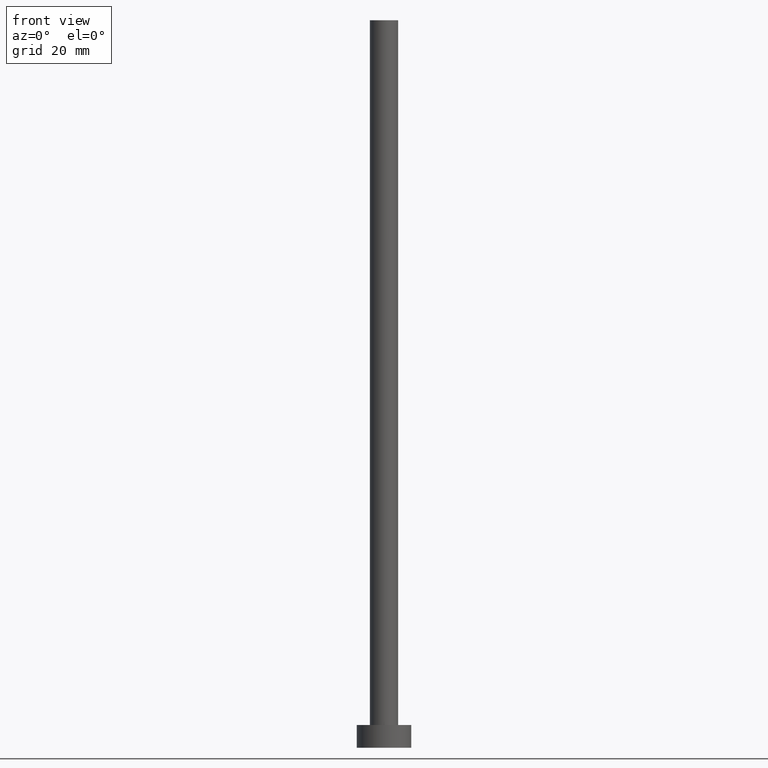
[diagram: clean part render]
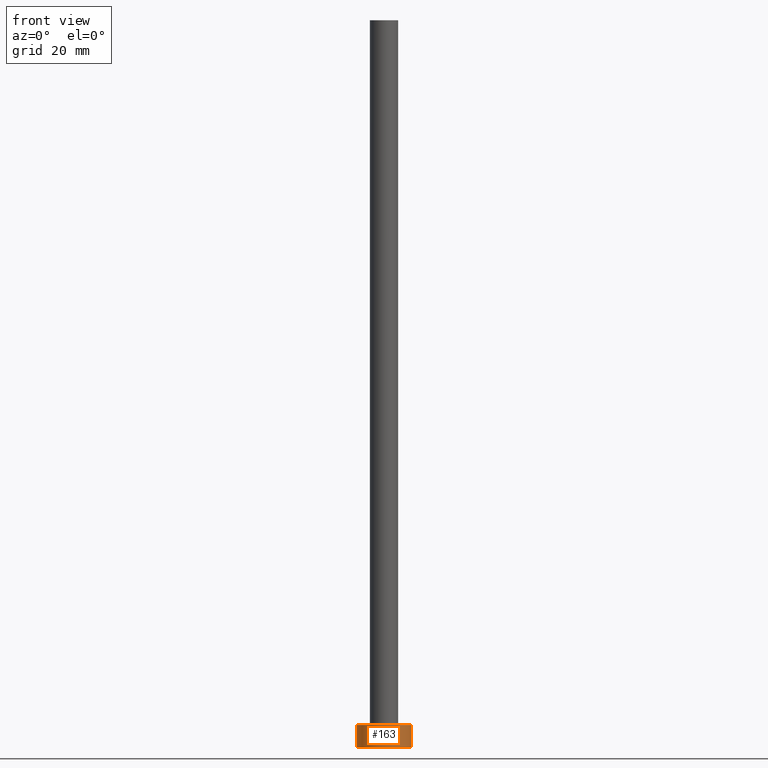
[diagram: same view with one face highlighted and labeled with its STEP entity id]
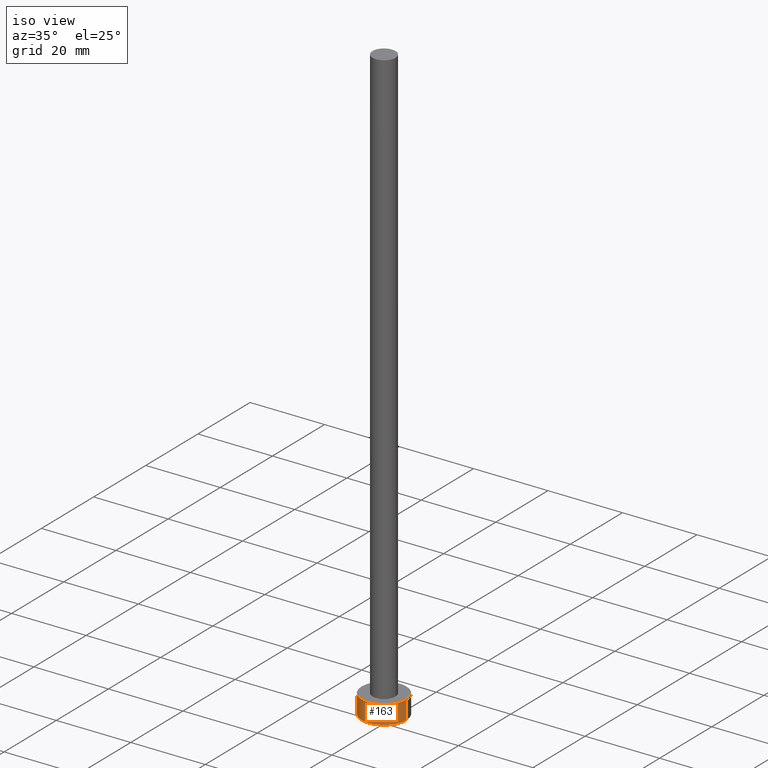
[diagram: same view with one face highlighted and labeled with its STEP entity id]
A machine part, front view. The second image highlights one B-rep face of the part: STEP entity #163.
A second angle (iso view) of the same face is appended — the face is thin or edge-on in the first view.
In plain terms, the highlighted cylindrical surface (edge-blend (fillet) strip) has radius 6 mm, axis along (-0, -0, -1).
Its self-contained STEP definition (entity closure, byte-faithful):
#9 = VERTEX_POINT ( 'NONE', #236 ) ;
#17 = DIRECTION ( 'NONE',  ( 1.000000000000000000, 0.000000000000000000, 0.000000000000000000 ) ) ;
#29 = VERTEX_POINT ( 'NONE', #192 ) ;
#40 = LINE ( 'NONE', #63, #188 ) ;
#45 = CARTESIAN_POINT ( 'NONE',  ( 0.000000000000000000, 0.000000000000000000, 0.000000000000000000 ) ) ;
#48 = DIRECTION ( 'NONE',  ( 0.000000000000000000, 0.000000000000000000, 1.000000000000000000 ) ) ;
#58 = DIRECTION ( 'NONE',  ( 1.000000000000000000, 0.000000000000000000, 0.000000000000000000 ) ) ;
#63 = CARTESIAN_POINT ( 'NONE',  ( -6.000000000000000888, 0.000000000000000000, 5.000000000000000000 ) ) ;
#71 = ORIENTED_EDGE ( 'NONE', *, *, #195, .T. ) ;
#86 = LINE ( 'NONE', #137, #117 ) ;
#88 = CARTESIAN_POINT ( 'NONE',  ( 0.000000000000000000, 0.000000000000000000, 5.000000000000000000 ) ) ;
#104 = AXIS2_PLACEMENT_3D ( 'NONE', #230, #48, #58 ) ;
#110 = ORIENTED_EDGE ( 'NONE', *, *, #157, .F. ) ;
#111 = EDGE_LOOP ( 'NONE', ( #110, #115, #71, #149 ) ) ;
#113 = EDGE_CURVE ( 'NONE', #29, #146, #249, .T. ) ;
#115 = ORIENTED_EDGE ( 'NONE', *, *, #113, .F. ) ;
#117 = VECTOR ( 'NONE', #156, 1000.000000000000000 ) ;
#119 = DIRECTION ( 'NONE',  ( -0.000000000000000000, -0.000000000000000000, -1.000000000000000000 ) ) ;
#120 = DIRECTION ( 'NONE',  ( 0.000000000000000000, 0.000000000000000000, 1.000000000000000000 ) ) ;
#126 = EDGE_CURVE ( 'NONE', #226, #9, #213, .T. ) ;
#129 = AXIS2_PLACEMENT_3D ( 'NONE', #45, #120, #17 ) ;
#133 = DIRECTION ( 'NONE',  ( -0.000000000000000000, -0.000000000000000000, -1.000000000000000000 ) ) ;
#137 = CARTESIAN_POINT ( 'NONE',  ( 6.000000000000000888, 7.347880794884120722E-16, 5.000000000000000000 ) ) ;
#146 = VERTEX_POINT ( 'NONE', #210 ) ;
#149 = ORIENTED_EDGE ( 'NONE', *, *, #126, .T. ) ;
#152 = FACE_OUTER_BOUND ( 'NONE', #111, .T. ) ;
#156 = DIRECTION ( 'NONE',  ( -0.000000000000000000, -0.000000000000000000, -1.000000000000000000 ) ) ;
#157 = EDGE_CURVE ( 'NONE', #146, #9, #86, .T. ) ;
#163 = ADVANCED_FACE ( 'NONE', ( #152 ), #174, .T. ) ;
#174 = CYLINDRICAL_SURFACE ( 'NONE', #184, 6.000000000000000888 ) ;
#184 = AXIS2_PLACEMENT_3D ( 'NONE', #88, #133, #231 ) ;
#187 = CARTESIAN_POINT ( 'NONE',  ( -6.000000000000000888, 0.000000000000000000, 0.000000000000000000 ) ) ;
#188 = VECTOR ( 'NONE', #119, 1000.000000000000000 ) ;
#192 = CARTESIAN_POINT ( 'NONE',  ( -6.000000000000000888, 0.000000000000000000, 5.000000000000000000 ) ) ;
#195 = EDGE_CURVE ( 'NONE', #29, #226, #40, .T. ) ;
#210 = CARTESIAN_POINT ( 'NONE',  ( 6.000000000000000888, 7.347880794884120722E-16, 5.000000000000000000 ) ) ;
#213 = CIRCLE ( 'NONE', #129, 6.000000000000000888 ) ;
#226 = VERTEX_POINT ( 'NONE', #187 ) ;
#230 = CARTESIAN_POINT ( 'NONE',  ( 0.000000000000000000, 0.000000000000000000, 5.000000000000000000 ) ) ;
#231 = DIRECTION ( 'NONE',  ( -1.000000000000000000, 0.000000000000000000, 0.000000000000000000 ) ) ;
#236 = CARTESIAN_POINT ( 'NONE',  ( 6.000000000000000888, 7.347880794884120722E-16, 0.000000000000000000 ) ) ;
#249 = CIRCLE ( 'NONE', #104, 6.000000000000000888 ) ;